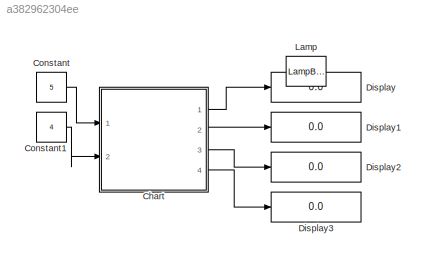
MODEL slx_a382962304ee
KIND model
CONFIG AbsTol = auto
CONFIG EnableMultiTasking = off
CONFIG FixedStep = auto
CONFIG MaxStep = auto
CONFIG MinStep = auto
CONFIG RelTol = 1e-3
CONFIG SampleTimeConstraint = Unconstrained
CONFIG SolverName = VariableStepAuto
CONFIG StartTime = 0.0
CONFIG StopTime = 10.0
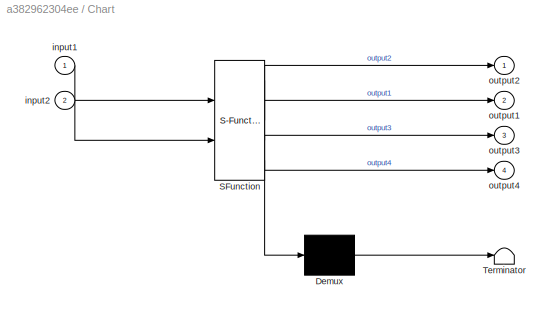
BLOCK [SubSystem] Chart
  ErrorFcn = Stateflow.Translate.translate
  PermitHierarchicalResolution = ExplicitOnly
  Ports = [2, 4]
  RequestExecContextInheritance = off
  SFBlockType = Chart
  TreatAsAtomicUnit = on
BLOCK [Demux] Chart/ Demux 
  Outputs = 1
  Ports = [1, 1]
BLOCK [S-Function] Chart/ SFunction 
  EnableBusSupport = on
  FunctionName = sf_sfun
  PortCounts = [2 5]
  Ports = [2, 5]
  SFcnIsStateOwnerBlock = off
  SFunctionDeploymentMode = off
  Tag = Stateflow S-Function 3
BLOCK [Terminator] Chart/ Terminator 
BLOCK [Inport] Chart/input1
BLOCK [Inport] Chart/input2
  Port = 2
BLOCK [Outport] Chart/output1
  Port = 2
BLOCK [Outport] Chart/output2
BLOCK [Outport] Chart/output3
  Port = 3
BLOCK [Outport] Chart/output4
  Port = 4
BLOCK [Constant] Constant
  Value = 5
BLOCK [Constant] Constant1
  Value = 4
BLOCK [Display] Display
  Decimation = 1
  Ports = [1]
BLOCK [Display] Display1
  Decimation = 1
  Ports = [1]
BLOCK [Display] Display2
  Decimation = 1
  Ports = [1]
BLOCK [Display] Display3
  Decimation = 1
  Ports = [1]
BLOCK [LampBlock] Lamp
  LabelPosition = Hide
LINE Chart:1 -> Display:1
LINE Chart:2 -> Display1:1
LINE Chart:3 -> Display2:1
LINE Chart:4 -> Display3:1
LINE Constant1:1 -> Chart:2
LINE Constant:1 -> Chart:1
CHART Chart states=4 transitions=6
  STATE_LABEL 'j=addation(x,y)'
  STATE_LABEL '{j=x+y;}'
  STATE_LABEL 'm=subtraction(a,b)'
  STATE_LABEL '{m=a-b;}'
  STATE_LABEL 'k=multiplication(x,y)'
  STATE_LABEL '{k=x*y;}'
  STATE_LABEL 'f=division(x,y)'
  STATE_LABEL '{f=x-y;}'
CHART  states=0 transitions=0
